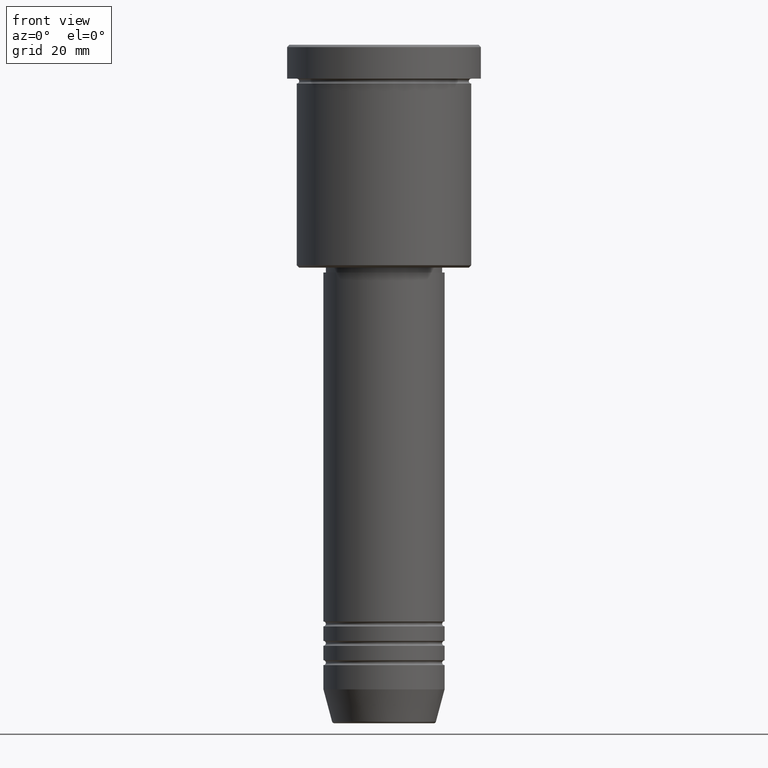
[diagram: clean part render]
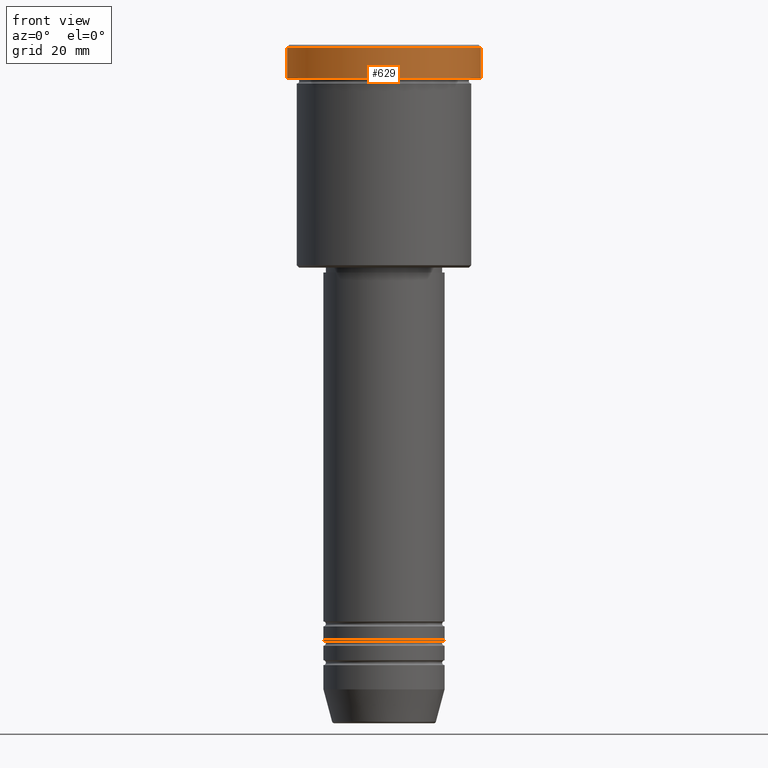
[diagram: same view with one face highlighted and labeled with its STEP entity id]
A machine part, front view. The second image highlights one B-rep face of the part: STEP entity #629.
In plain terms, the highlighted cylindrical surface (partial cylindrical patch) has radius 20 mm, axis along (-0, -0, 1).
Its self-contained STEP definition (entity closure, byte-faithful):
#4 = EDGE_CURVE ( 'NONE', #8, #458, #466, .T. ) ;
#8 = VERTEX_POINT ( 'NONE', #926 ) ;
#16 = LINE ( 'NONE', #481, #582 ) ;
#45 = CARTESIAN_POINT ( 'NONE',  ( 0.000000000000000000, 0.000000000000000000, 0.000000000000000000 ) ) ;
#65 = AXIS2_PLACEMENT_3D ( 'NONE', #45, #408, #496 ) ;
#156 = EDGE_CURVE ( 'NONE', #458, #163, #16, .T. ) ;
#163 = VERTEX_POINT ( 'NONE', #1111 ) ;
#194 = CIRCLE ( 'NONE', #241, 20.00000000000000000 ) ;
#241 = AXIS2_PLACEMENT_3D ( 'NONE', #1012, #924, #650 ) ;
#295 = AXIS2_PLACEMENT_3D ( 'NONE', #1011, #649, #836 ) ;
#305 = CARTESIAN_POINT ( 'NONE',  ( -20.00000000000000000, 2.449293598294706513E-15, -0.5000000000000247580 ) ) ;
#408 = DIRECTION ( 'NONE',  ( -0.000000000000000000, -0.000000000000000000, 1.000000000000000000 ) ) ;
#441 = EDGE_CURVE ( 'NONE', #8, #925, #647, .T. ) ;
#458 = VERTEX_POINT ( 'NONE', #990 ) ;
#466 = CIRCLE ( 'NONE', #295, 20.00000000000000000 ) ;
#474 = ORIENTED_EDGE ( 'NONE', *, *, #4, .T. ) ;
#481 = CARTESIAN_POINT ( 'NONE',  ( 20.00000000000000000, 0.000000000000000000, 0.000000000000000000 ) ) ;
#496 = DIRECTION ( 'NONE',  ( 1.000000000000000000, 0.000000000000000000, 0.000000000000000000 ) ) ;
#499 = FACE_OUTER_BOUND ( 'NONE', #692, .T. ) ;
#575 = CYLINDRICAL_SURFACE ( 'NONE', #65, 20.00000000000000000 ) ;
#582 = VECTOR ( 'NONE', #940, 1000.000000000000000 ) ;
#623 = CARTESIAN_POINT ( 'NONE',  ( -20.00000000000000000, 2.449293598294706513E-15, 0.000000000000000000 ) ) ;
#629 = ADVANCED_FACE ( 'NONE', ( #499 ), #575, .T. ) ;
#647 = LINE ( 'NONE', #623, #860 ) ;
#649 = DIRECTION ( 'NONE',  ( -0.000000000000000000, -0.000000000000000000, 1.000000000000000000 ) ) ;
#650 = DIRECTION ( 'NONE',  ( 1.000000000000000000, 0.000000000000000000, 0.000000000000000000 ) ) ;
#692 = EDGE_LOOP ( 'NONE', ( #881, #474, #754, #715 ) ) ;
#715 = ORIENTED_EDGE ( 'NONE', *, *, #866, .T. ) ;
#754 = ORIENTED_EDGE ( 'NONE', *, *, #156, .T. ) ;
#836 = DIRECTION ( 'NONE',  ( 1.000000000000000000, 0.000000000000000000, 0.000000000000000000 ) ) ;
#860 = VECTOR ( 'NONE', #1109, 1000.000000000000000 ) ;
#866 = EDGE_CURVE ( 'NONE', #163, #925, #194, .T. ) ;
#881 = ORIENTED_EDGE ( 'NONE', *, *, #441, .F. ) ;
#924 = DIRECTION ( 'NONE',  ( 0.000000000000000000, 0.000000000000000000, -1.000000000000000000 ) ) ;
#925 = VERTEX_POINT ( 'NONE', #305 ) ;
#926 = CARTESIAN_POINT ( 'NONE',  ( -20.00000000000000000, 2.449293598294706513E-15, -6.999999999999995559 ) ) ;
#940 = DIRECTION ( 'NONE',  ( -0.000000000000000000, -0.000000000000000000, 1.000000000000000000 ) ) ;
#990 = CARTESIAN_POINT ( 'NONE',  ( 20.00000000000000000, 0.000000000000000000, -6.999999999999995559 ) ) ;
#1011 = CARTESIAN_POINT ( 'NONE',  ( 0.000000000000000000, 0.000000000000000000, -6.999999999999995559 ) ) ;
#1012 = CARTESIAN_POINT ( 'NONE',  ( 0.000000000000000000, 0.000000000000000000, -0.5000000000000247580 ) ) ;
#1109 = DIRECTION ( 'NONE',  ( -0.000000000000000000, -0.000000000000000000, 1.000000000000000000 ) ) ;
#1111 = CARTESIAN_POINT ( 'NONE',  ( 20.00000000000000000, 0.000000000000000000, -0.5000000000000247580 ) ) ;